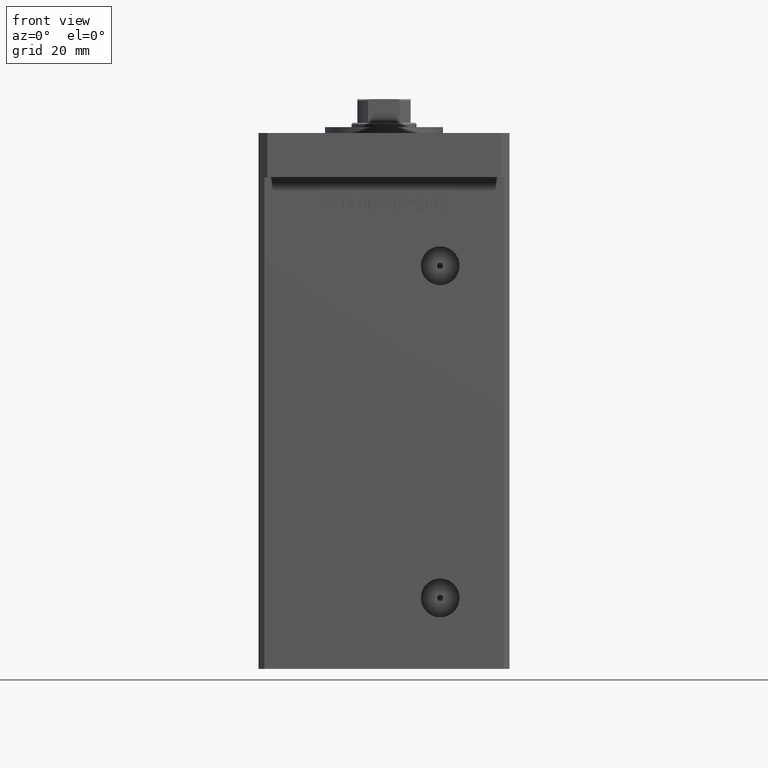
[diagram: clean part render]
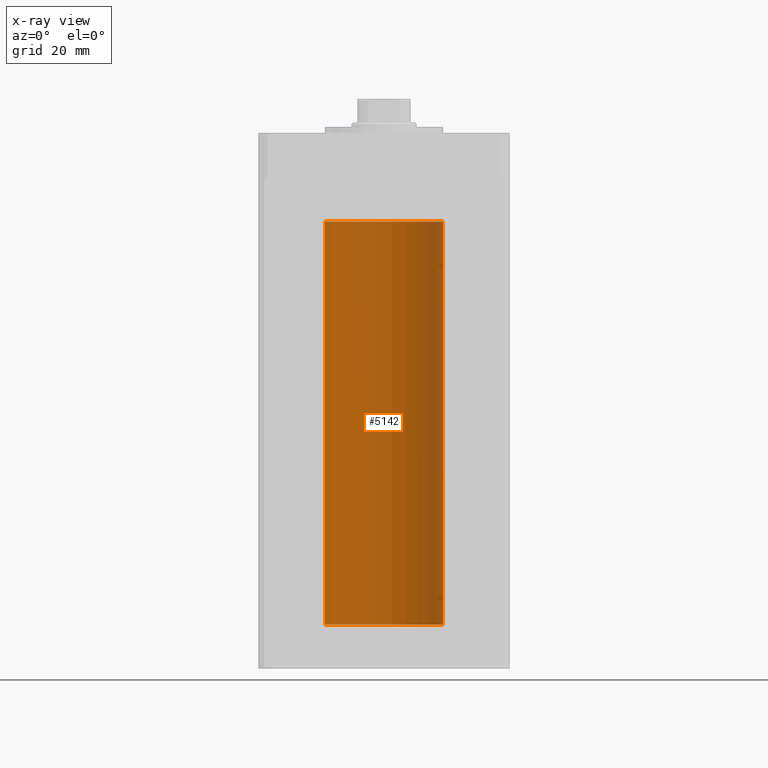
[diagram: x-ray — body ghosted, one internal face saturated and labeled with its STEP entity id]
A machine part, front view, then the same camera in x-ray: the body is ghosted and one INTERNAL B-rep face — a face not visible from any outside direction — is saturated and labeled: STEP entity #5142.
In plain terms, the highlighted cylindrical surface (partial cylindrical patch) has radius 20 mm, axis along (-0, -0, -1).
Its self-contained STEP definition (entity closure, byte-faithful):
#1064 = CARTESIAN_POINT ( 'NONE',  ( 0.000000000000000000, 0.000000000000000000, 136.5000000000000000 ) ) ;
#2700 = CARTESIAN_POINT ( 'NONE',  ( 0.000000000000000000, 0.000000000000000000, 0.000000000000000000 ) ) ;
#3474 = DIRECTION ( 'NONE',  ( -1.000000000000000000, 0.000000000000000000, 0.000000000000000000 ) ) ;
#4469 = VECTOR ( 'NONE', #51732, 1000.000000000000000 ) ;
#5142 = ADVANCED_FACE ( 'NONE', ( #44678 ), #52043, .F. ) ;
#6198 = CARTESIAN_POINT ( 'NONE',  ( 20.00000000000000000, 2.449293598294706513E-15, 136.5000000000000000 ) ) ;
#7561 = DIRECTION ( 'NONE',  ( -0.000000000000000000, -0.000000000000000000, -1.000000000000000000 ) ) ;
#7834 = EDGE_CURVE ( 'NONE', #9203, #15834, #40657, .T. ) ;
#8071 = CIRCLE ( 'NONE', #36635, 20.00000000000000000 ) ;
#9203 = VERTEX_POINT ( 'NONE', #25791 ) ;
#9320 = DIRECTION ( 'NONE',  ( -0.000000000000000000, -0.000000000000000000, -1.000000000000000000 ) ) ;
#9733 = LINE ( 'NONE', #6198, #4469 ) ;
#9969 = ORIENTED_EDGE ( 'NONE', *, *, #29510, .T. ) ;
#10059 = DIRECTION ( 'NONE',  ( 1.000000000000000000, 0.000000000000000000, 0.000000000000000000 ) ) ;
#13106 = LINE ( 'NONE', #46702, #37980 ) ;
#13564 = DIRECTION ( 'NONE',  ( -0.000000000000000000, 0.000000000000000000, 1.000000000000000000 ) ) ;
#13796 = EDGE_CURVE ( 'NONE', #9203, #28624, #9733, .T. ) ;
#15834 = VERTEX_POINT ( 'NONE', #33523 ) ;
#16437 = AXIS2_PLACEMENT_3D ( 'NONE', #1064, #13564, #17896 ) ;
#17433 = CARTESIAN_POINT ( 'NONE',  ( 20.00000000000000000, 2.449293598294706513E-15, 0.000000000000000000 ) ) ;
#17896 = DIRECTION ( 'NONE',  ( 1.000000000000000000, 0.000000000000000000, 0.000000000000000000 ) ) ;
#19931 = AXIS2_PLACEMENT_3D ( 'NONE', #27091, #7561, #3474 ) ;
#20089 = ORIENTED_EDGE ( 'NONE', *, *, #13796, .F. ) ;
#22286 = ORIENTED_EDGE ( 'NONE', *, *, #7834, .T. ) ;
#25791 = CARTESIAN_POINT ( 'NONE',  ( 20.00000000000000000, 2.449293598294706513E-15, 136.5000000000000000 ) ) ;
#27091 = CARTESIAN_POINT ( 'NONE',  ( 0.000000000000000000, 0.000000000000000000, 136.5000000000000000 ) ) ;
#28624 = VERTEX_POINT ( 'NONE', #17433 ) ;
#29510 = EDGE_CURVE ( 'NONE', #15834, #48680, #13106, .T. ) ;
#30026 = EDGE_LOOP ( 'NONE', ( #20089, #22286, #9969, #35497 ) ) ;
#33523 = CARTESIAN_POINT ( 'NONE',  ( -20.00000000000000000, 0.000000000000000000, 136.5000000000000000 ) ) ;
#35497 = ORIENTED_EDGE ( 'NONE', *, *, #45693, .F. ) ;
#36050 = DIRECTION ( 'NONE',  ( -0.000000000000000000, 0.000000000000000000, 1.000000000000000000 ) ) ;
#36635 = AXIS2_PLACEMENT_3D ( 'NONE', #2700, #36050, #10059 ) ;
#37980 = VECTOR ( 'NONE', #9320, 1000.000000000000000 ) ;
#40657 = CIRCLE ( 'NONE', #16437, 20.00000000000000000 ) ;
#44678 = FACE_OUTER_BOUND ( 'NONE', #30026, .T. ) ;
#45230 = CARTESIAN_POINT ( 'NONE',  ( -20.00000000000000000, 0.000000000000000000, 0.000000000000000000 ) ) ;
#45693 = EDGE_CURVE ( 'NONE', #28624, #48680, #8071, .T. ) ;
#46702 = CARTESIAN_POINT ( 'NONE',  ( -20.00000000000000000, 0.000000000000000000, 136.5000000000000000 ) ) ;
#48680 = VERTEX_POINT ( 'NONE', #45230 ) ;
#51732 = DIRECTION ( 'NONE',  ( -0.000000000000000000, -0.000000000000000000, -1.000000000000000000 ) ) ;
#52043 = CYLINDRICAL_SURFACE ( 'NONE', #19931, 20.00000000000000000 ) ;